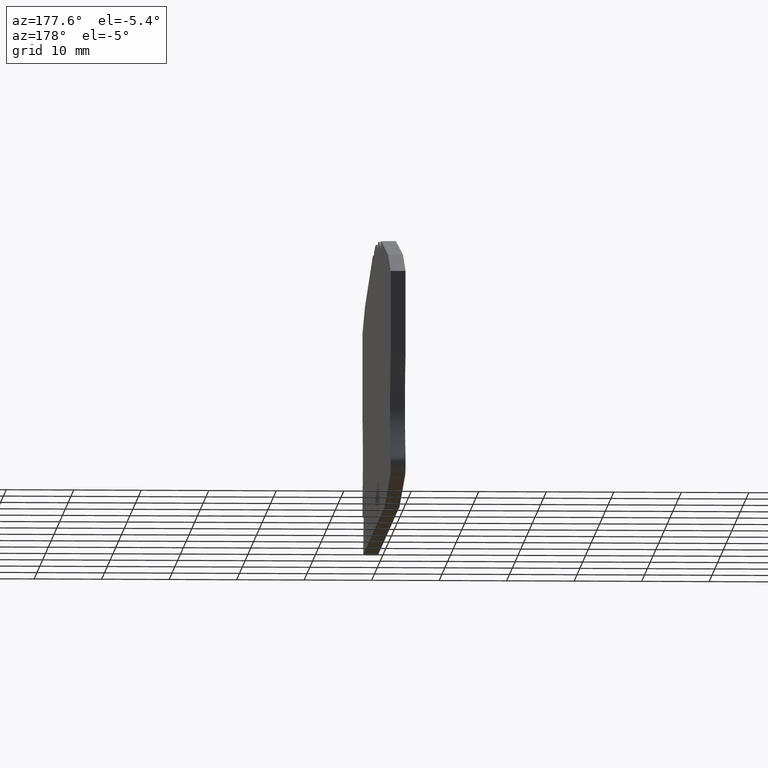
[diagram: clean part render]
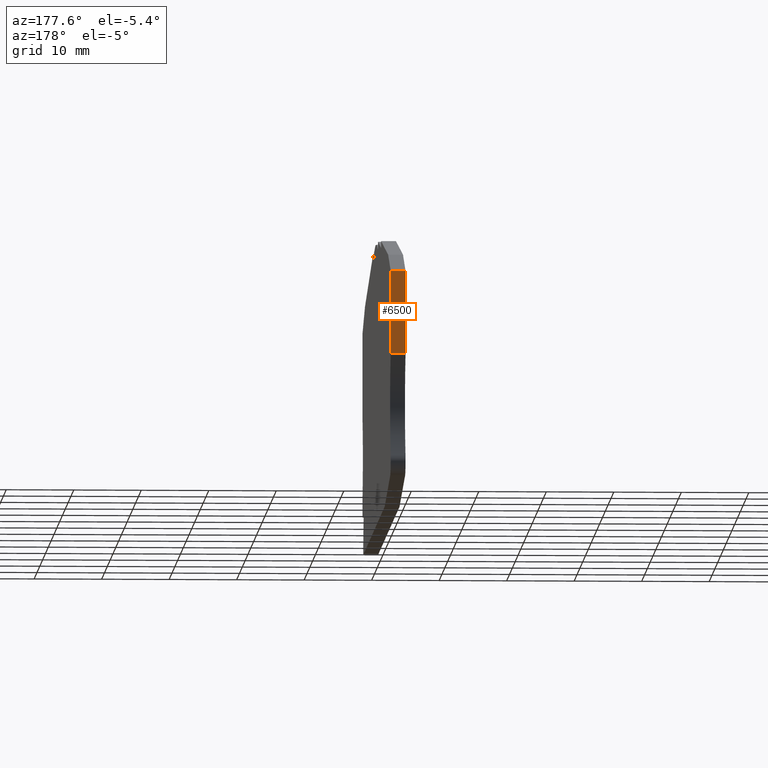
[diagram: same view with one face highlighted and labeled with its STEP entity id]
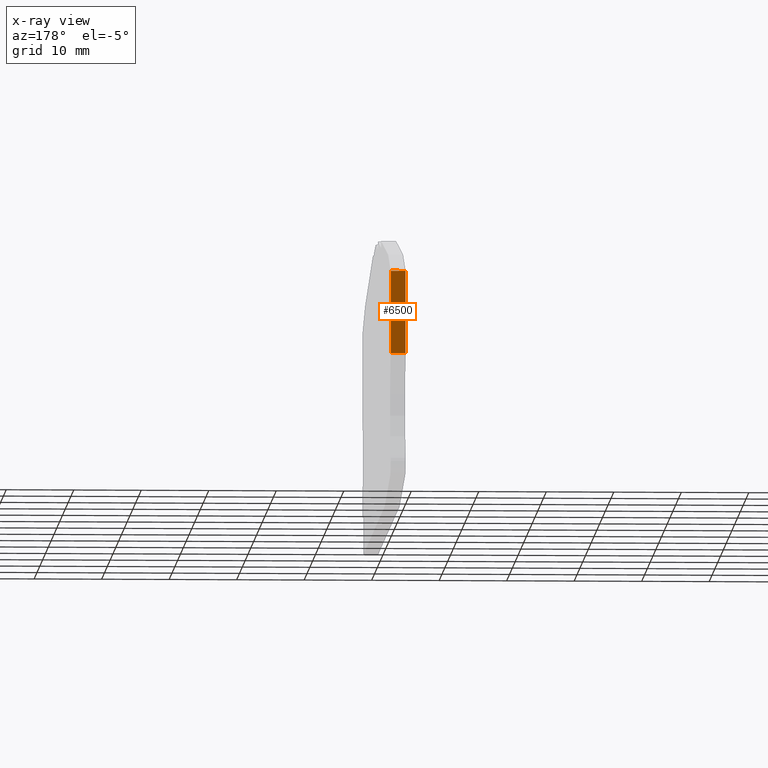
[diagram: x-ray of the same camera — body ghosted, the highlighted face saturated]
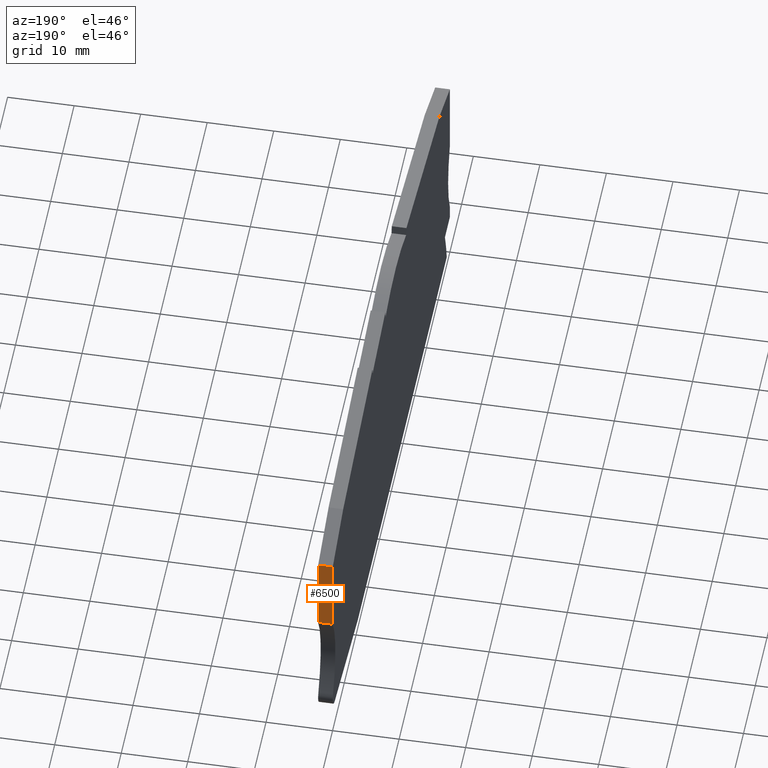
[diagram: same view with one face highlighted and labeled with its STEP entity id]
A machine part, auxiliary view. The second image highlights one B-rep face of the part: STEP entity #6500.
The next image is the same camera in x-ray: the body ghosted, the highlighted face saturated — about 0% of this face is hidden behind the body in this view.
A second angle (auxiliary view) of the same face is appended — the face is thin or edge-on in the first view.
In plain terms, the highlighted planar face has unit normal (0, -1, -0).
Its self-contained STEP definition (entity closure, byte-faithful):
#830=CARTESIAN_POINT('',(83.8152812045608,-40.8853175266754,
125.750000000057));
#840=VERTEX_POINT('',#830);
#870=CARTESIAN_POINT('',(83.8152812046628,-73.7758869043069,
125.750000000033));
#880=DIRECTION('',(-3.1022961977106E-12,1.,7.59071191708495E-13));
#890=VECTOR('',#880,1.);
#900=LINE('',#870,#890);
#910=CARTESIAN_POINT('',(83.8152812045986,-53.0960397776546,
125.750000000048));
#920=VERTEX_POINT('',#910);
#930=EDGE_CURVE('',#920,#840,#900,.T.);
#4470=CARTESIAN_POINT('',(83.8152812046,-53.096039777653,
123.550000000048));
#4480=VERTEX_POINT('',#4470);
#4510=CARTESIAN_POINT('',(83.8152812046641,-73.7758869043053,
123.550000000032));
#4520=DIRECTION('',(-3.1022961977106E-12,1.,7.59071191708495E-13));
#4530=VECTOR('',#4520,1.);
#4540=LINE('',#4510,#4530);
#4550=CARTESIAN_POINT('',(83.8152812045621,-40.8853175266737,
123.550000000057));
#4560=VERTEX_POINT('',#4550);
#4570=EDGE_CURVE('',#4480,#4560,#4540,.T.);
#5210=CARTESIAN_POINT('',(83.8152812045621,-40.8853175266737,
123.550000000057));
#5220=DIRECTION('',(-6.03432729529515E-13,-7.59071191710367E-13,1.));
#5230=VECTOR('',#5220,1.);
#5240=LINE('',#5210,#5230);
#5250=EDGE_CURVE('',#4560,#840,#5240,.T.);
#6040=CARTESIAN_POINT('',(83.8152812046013,-53.0960397776513,
121.349997599934));
#6050=DIRECTION('',(6.03432729529515E-13,7.59071191710367E-13,-1.));
#6060=VECTOR('',#6050,1.);
#6070=LINE('',#6040,#6060);
#6080=EDGE_CURVE('',#920,#4480,#6070,.T.);
#6390=CARTESIAN_POINT('',(83.8152812046004,-52.8214345276706,
121.349997599934));
#6400=DIRECTION('',(-1.,-3.10229619771014E-12,-6.0343272953187E-13));
#6410=DIRECTION('',(-3.1022961977106E-12,1.,7.59071191708495E-13));
#6420=AXIS2_PLACEMENT_3D('',#6390,#6400,#6410);
#6430=PLANE('',#6420);
#6440=ORIENTED_EDGE('',*,*,#6080,.T.);
#6450=ORIENTED_EDGE('',*,*,#930,.F.);
#6460=ORIENTED_EDGE('',*,*,#5250,.T.);
#6470=ORIENTED_EDGE('',*,*,#4570,.T.);
#6480=EDGE_LOOP('',(#6470,#6460,#6450,#6440));
#6490=FACE_OUTER_BOUND('',#6480,.T.);
#6500=ADVANCED_FACE('',(#6490),#6430,.F.);